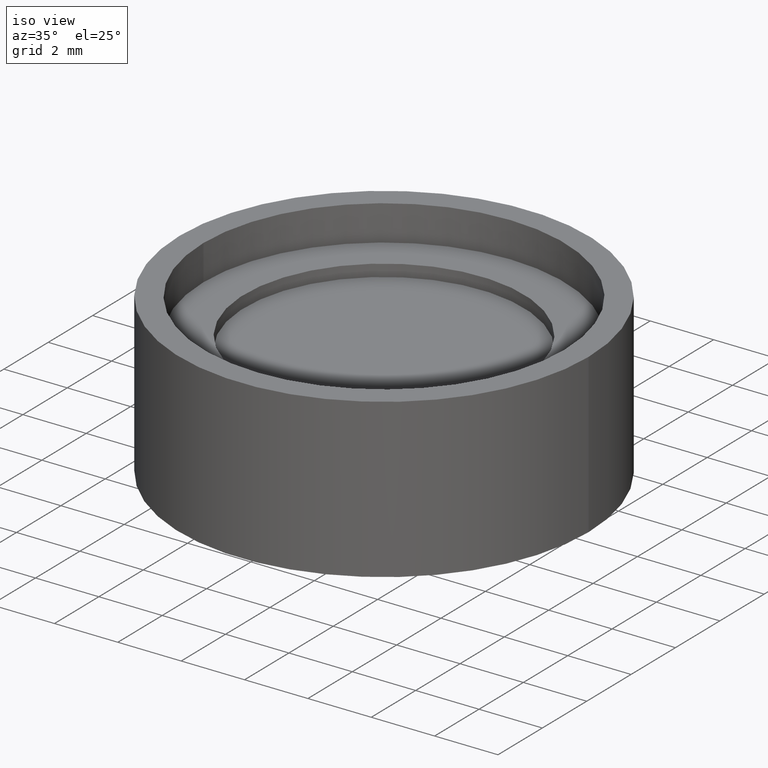
[diagram: clean part render]
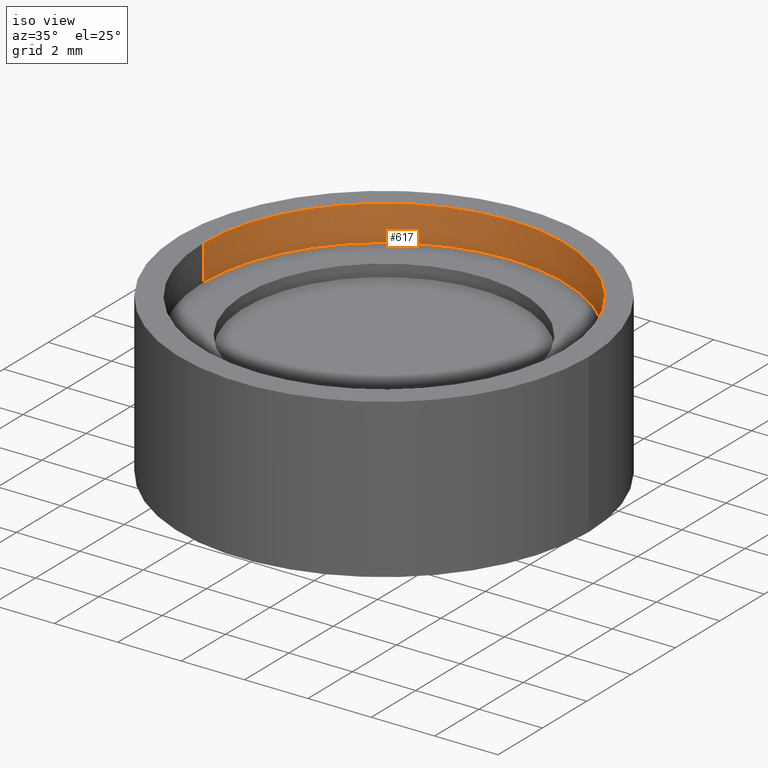
[diagram: same view with one face highlighted and labeled with its STEP entity id]
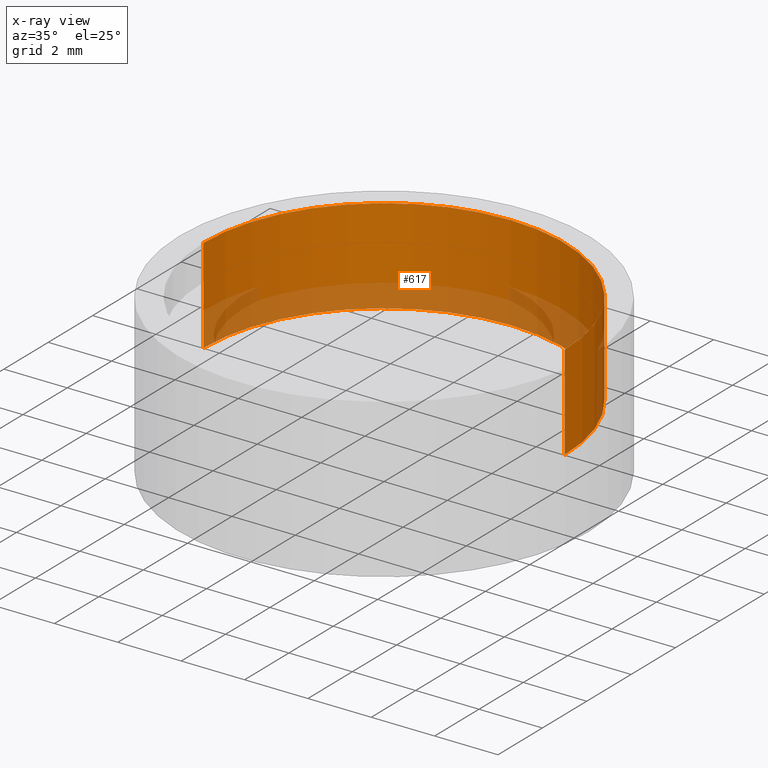
[diagram: x-ray of the same camera — body ghosted, the highlighted face saturated]
A machine part, iso view. The second image highlights one B-rep face of the part: STEP entity #617.
The next image is the same camera in x-ray: the body ghosted, the highlighted face saturated — about 26% of this face is hidden behind the body in this view.
In plain terms, the highlighted cylindrical surface (partial cylindrical patch) has radius 5.7 mm, axis along (-0, -0, -1).
Its self-contained STEP definition (entity closure, byte-faithful):
#38 = VERTEX_POINT ( 'NONE', #490 ) ;
#39 = ORIENTED_EDGE ( 'NONE', *, *, #406, .T. ) ;
#42 = VECTOR ( 'NONE', #215, 1000.000000000000000 ) ;
#46 = LINE ( 'NONE', #165, #444 ) ;
#48 = DIRECTION ( 'NONE',  ( -0.0000000000000000000, -0.0000000000000000000, -1.000000000000000000 ) ) ;
#62 = FACE_OUTER_BOUND ( 'NONE', #495, .T. ) ;
#120 = CARTESIAN_POINT ( 'NONE',  ( -5.700000000000000178, 0.0000000000000000000, 0.8809999999999997833 ) ) ;
#126 = AXIS2_PLACEMENT_3D ( 'NONE', #213, #48, #250 ) ;
#131 = ORIENTED_EDGE ( 'NONE', *, *, #192, .F. ) ;
#138 = DIRECTION ( 'NONE',  ( -1.000000000000000000, 0.0000000000000000000, 0.0000000000000000000 ) ) ;
#165 = CARTESIAN_POINT ( 'NONE',  ( -5.700000000000000178, 0.0000000000000000000, -1.695065087290339889 ) ) ;
#192 = EDGE_CURVE ( 'NONE', #345, #387, #241, .T. ) ;
#195 = AXIS2_PLACEMENT_3D ( 'NONE', #377, #325, #138 ) ;
#213 = CARTESIAN_POINT ( 'NONE',  ( 0.0000000000000000000, 0.0000000000000000000, -1.695065087290339889 ) ) ;
#215 = DIRECTION ( 'NONE',  ( -0.0000000000000000000, -0.0000000000000000000, -1.000000000000000000 ) ) ;
#216 = DIRECTION ( 'NONE',  ( -0.0000000000000000000, -0.0000000000000000000, -1.000000000000000000 ) ) ;
#241 = CIRCLE ( 'NONE', #195, 5.699999999999999289 ) ;
#250 = DIRECTION ( 'NONE',  ( -1.000000000000000000, 0.0000000000000000000, 0.0000000000000000000 ) ) ;
#263 = LINE ( 'NONE', #461, #42 ) ;
#276 = ORIENTED_EDGE ( 'NONE', *, *, #488, .F. ) ;
#317 = CARTESIAN_POINT ( 'NONE',  ( 0.0000000000000000000, 0.0000000000000000000, 0.8809999999999997833 ) ) ;
#325 = DIRECTION ( 'NONE',  ( -0.0000000000000000000, -0.0000000000000000000, -1.000000000000000000 ) ) ;
#345 = VERTEX_POINT ( 'NONE', #368 ) ;
#368 = CARTESIAN_POINT ( 'NONE',  ( -5.699999999999999289, 0.0000000000000000000, 3.881000000000001560 ) ) ;
#371 = VERTEX_POINT ( 'NONE', #120 ) ;
#374 = EDGE_CURVE ( 'NONE', #371, #38, #619, .T. ) ;
#377 = CARTESIAN_POINT ( 'NONE',  ( 0.0000000000000000000, 0.0000000000000000000, 3.881000000000001560 ) ) ;
#387 = VERTEX_POINT ( 'NONE', #451 ) ;
#401 = CYLINDRICAL_SURFACE ( 'NONE', #126, 5.700000000000000178 ) ;
#406 = EDGE_CURVE ( 'NONE', #345, #371, #46, .T. ) ;
#416 = AXIS2_PLACEMENT_3D ( 'NONE', #317, #216, #615 ) ;
#444 = VECTOR ( 'NONE', #464, 1000.000000000000000 ) ;
#451 = CARTESIAN_POINT ( 'NONE',  ( 5.699999999999999289, 6.980486755139912122E-16, 3.881000000000001560 ) ) ;
#461 = CARTESIAN_POINT ( 'NONE',  ( 5.700000000000000178, 6.980486755139913108E-16, -1.695065087290339889 ) ) ;
#464 = DIRECTION ( 'NONE',  ( -0.0000000000000000000, -0.0000000000000000000, -1.000000000000000000 ) ) ;
#488 = EDGE_CURVE ( 'NONE', #387, #38, #263, .T. ) ;
#490 = CARTESIAN_POINT ( 'NONE',  ( 5.700000000000000178, 6.980486755139913108E-16, 0.8809999999999997833 ) ) ;
#495 = EDGE_LOOP ( 'NONE', ( #276, #131, #39, #562 ) ) ;
#562 = ORIENTED_EDGE ( 'NONE', *, *, #374, .T. ) ;
#615 = DIRECTION ( 'NONE',  ( -1.000000000000000000, 0.0000000000000000000, 0.0000000000000000000 ) ) ;
#617 = ADVANCED_FACE ( 'NONE', ( #62 ), #401, .F. ) ;
#619 = CIRCLE ( 'NONE', #416, 5.700000000000000178 ) ;